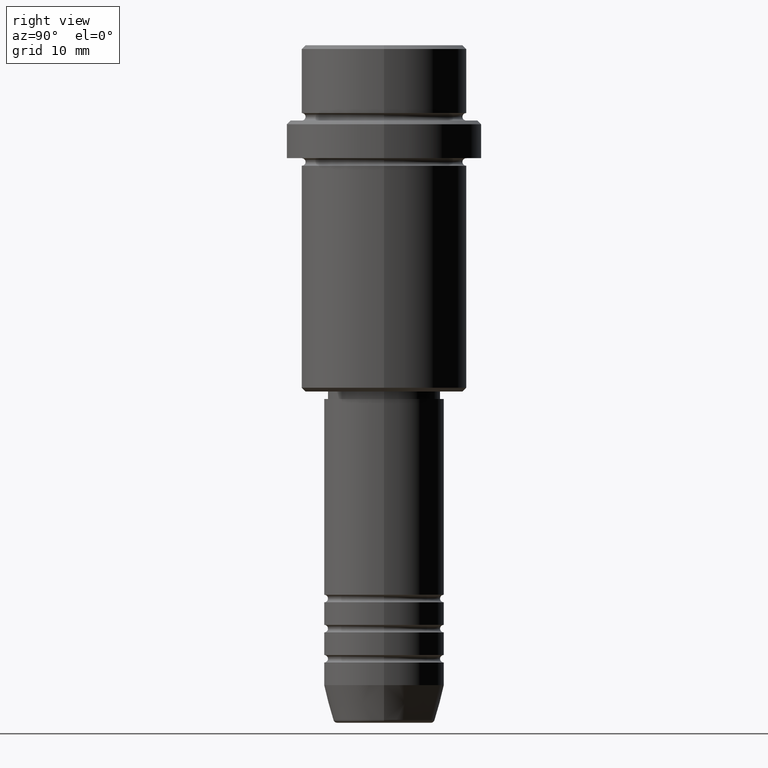
[diagram: clean part render]
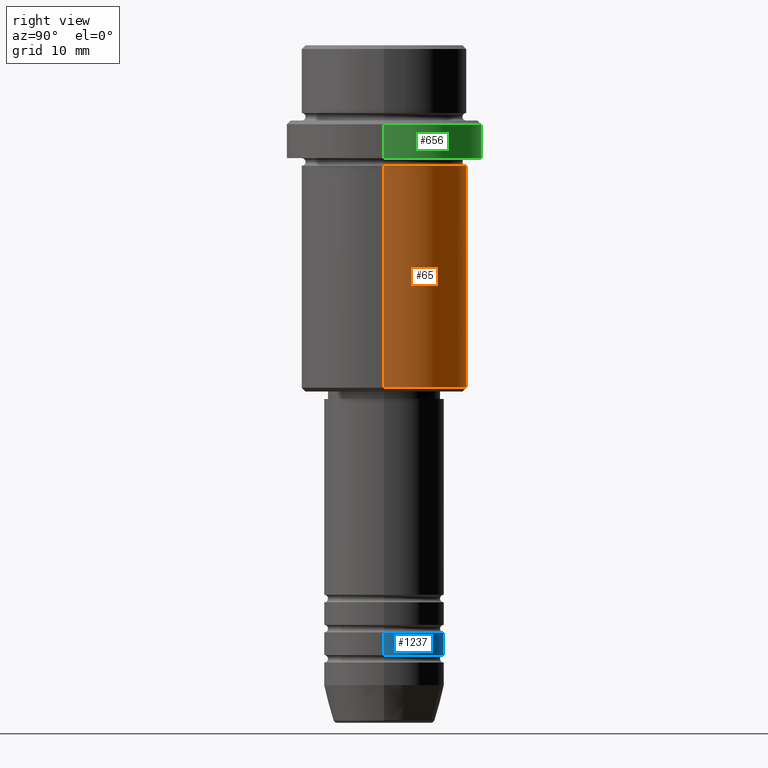
[diagram: same view with three faces highlighted in distinct colors, each labeled with its STEP entity id]
A machine part, right view with three faces highlighted in distinct colors.
Their STEP definitions:

[orange] entity #65 — the highlighted cylindrical surface (partial cylindrical patch) has radius 11 mm, axis along (-0, -0, 1).
#25 = EDGE_LOOP ( 'NONE', ( #969, #149, #1257, #78 ) ) ;
#55 = CARTESIAN_POINT ( 'NONE',  ( 0.000000000000000000, 0.000000000000000000, -16.00000000000000355 ) ) ;
#61 = DIRECTION ( 'NONE',  ( 1.000000000000000000, 0.000000000000000000, 0.000000000000000000 ) ) ;
#65 = ADVANCED_FACE ( 'NONE', ( #218 ), #127, .T. ) ;
#71 = CARTESIAN_POINT ( 'NONE',  ( -10.99999999999998757, 1.347111479062086827E-15, 0.000000000000000000 ) ) ;
#78 = ORIENTED_EDGE ( 'NONE', *, *, #148, .F. ) ;
#97 = CIRCLE ( 'NONE', #1162, 10.99999999999997158 ) ;
#100 = VECTOR ( 'NONE', #1375, 1000.000000000000000 ) ;
#114 = CARTESIAN_POINT ( 'NONE',  ( 10.99999999999998757, 0.000000000000000000, 0.000000000000000000 ) ) ;
#127 = CYLINDRICAL_SURFACE ( 'NONE', #1223, 10.99999999999998757 ) ;
#148 = EDGE_CURVE ( 'NONE', #309, #1197, #1110, .T. ) ;
#149 = ORIENTED_EDGE ( 'NONE', *, *, #910, .T. ) ;
#193 = EDGE_CURVE ( 'NONE', #1197, #403, #97, .T. ) ;
#218 = FACE_OUTER_BOUND ( 'NONE', #25, .T. ) ;
#224 = DIRECTION ( 'NONE',  ( -0.000000000000000000, -0.000000000000000000, 1.000000000000000000 ) ) ;
#309 = VERTEX_POINT ( 'NONE', #800 ) ;
#383 = DIRECTION ( 'NONE',  ( -1.000000000000000000, 0.000000000000000000, 0.000000000000000000 ) ) ;
#403 = VERTEX_POINT ( 'NONE', #653 ) ;
#428 = DIRECTION ( 'NONE',  ( 1.000000000000000000, 0.000000000000000000, 0.000000000000000000 ) ) ;
#442 = CARTESIAN_POINT ( 'NONE',  ( 10.99999999999997158, 0.000000000000000000, -16.00000000000000355 ) ) ;
#653 = CARTESIAN_POINT ( 'NONE',  ( -10.99999999999997158, 1.347111479062085841E-15, -16.00000000000000355 ) ) ;
#676 = CARTESIAN_POINT ( 'NONE',  ( 0.000000000000000000, 0.000000000000000000, 0.000000000000000000 ) ) ;
#705 = CARTESIAN_POINT ( 'NONE',  ( 0.000000000000000000, 0.000000000000000000, -45.50000000000000000 ) ) ;
#722 = DIRECTION ( 'NONE',  ( -0.000000000000000000, -0.000000000000000000, 1.000000000000000000 ) ) ;
#799 = VERTEX_POINT ( 'NONE', #1326 ) ;
#800 = CARTESIAN_POINT ( 'NONE',  ( 10.99999999999998757, 0.000000000000000000, -45.50000000000000000 ) ) ;
#910 = EDGE_CURVE ( 'NONE', #799, #403, #1131, .T. ) ;
#919 = VECTOR ( 'NONE', #224, 1000.000000000000000 ) ;
#969 = ORIENTED_EDGE ( 'NONE', *, *, #1236, .T. ) ;
#1110 = LINE ( 'NONE', #114, #919 ) ;
#1131 = LINE ( 'NONE', #71, #100 ) ;
#1162 = AXIS2_PLACEMENT_3D ( 'NONE', #55, #1359, #61 ) ;
#1194 = AXIS2_PLACEMENT_3D ( 'NONE', #705, #722, #383 ) ;
#1197 = VERTEX_POINT ( 'NONE', #442 ) ;
#1223 = AXIS2_PLACEMENT_3D ( 'NONE', #676, #1327, #428 ) ;
#1236 = EDGE_CURVE ( 'NONE', #309, #799, #1319, .T. ) ;
#1257 = ORIENTED_EDGE ( 'NONE', *, *, #193, .F. ) ;
#1319 = CIRCLE ( 'NONE', #1194, 10.99999999999998757 ) ;
#1326 = CARTESIAN_POINT ( 'NONE',  ( -10.99999999999998757, 1.347111479062086827E-15, -45.50000000000000000 ) ) ;
#1327 = DIRECTION ( 'NONE',  ( -0.000000000000000000, -0.000000000000000000, 1.000000000000000000 ) ) ;
#1359 = DIRECTION ( 'NONE',  ( -0.000000000000000000, -0.000000000000000000, 1.000000000000000000 ) ) ;
#1375 = DIRECTION ( 'NONE',  ( -0.000000000000000000, -0.000000000000000000, 1.000000000000000000 ) ) ;

[blue] entity #1237 — the highlighted cylindrical surface (partial cylindrical patch) has radius 8 mm, axis along (-0, -0, 1).
#18 = CARTESIAN_POINT ( 'NONE',  ( 8.000000000000000000, 0.000000000000000000, -77.99999999999990052 ) ) ;
#19 = EDGE_CURVE ( 'NONE', #382, #537, #849, .T. ) ;
#83 = VECTOR ( 'NONE', #529, 1000.000000000000000 ) ;
#94 = LINE ( 'NONE', #1304, #83 ) ;
#104 = CARTESIAN_POINT ( 'NONE',  ( 0.000000000000000000, 0.000000000000000000, -80.99999999999990052 ) ) ;
#147 = CARTESIAN_POINT ( 'NONE',  ( -8.000000000000000000, 9.797174393178825657E-16, -80.99999999999990052 ) ) ;
#150 = DIRECTION ( 'NONE',  ( 1.000000000000000000, 0.000000000000000000, 0.000000000000000000 ) ) ;
#157 = VERTEX_POINT ( 'NONE', #18 ) ;
#191 = DIRECTION ( 'NONE',  ( -0.000000000000000000, -0.000000000000000000, 1.000000000000000000 ) ) ;
#256 = EDGE_CURVE ( 'NONE', #1063, #382, #1404, .T. ) ;
#264 = EDGE_CURVE ( 'NONE', #157, #537, #320, .T. ) ;
#283 = CARTESIAN_POINT ( 'NONE',  ( -8.000000000000000000, 9.797174393178825657E-16, -77.99999999999990052 ) ) ;
#311 = ORIENTED_EDGE ( 'NONE', *, *, #256, .T. ) ;
#320 = CIRCLE ( 'NONE', #1138, 8.000000000000000000 ) ;
#382 = VERTEX_POINT ( 'NONE', #147 ) ;
#405 = CARTESIAN_POINT ( 'NONE',  ( 8.000000000000000000, 0.000000000000000000, -80.99999999999990052 ) ) ;
#466 = CYLINDRICAL_SURFACE ( 'NONE', #666, 8.000000000000000000 ) ;
#512 = ORIENTED_EDGE ( 'NONE', *, *, #19, .T. ) ;
#529 = DIRECTION ( 'NONE',  ( -0.000000000000000000, -0.000000000000000000, 1.000000000000000000 ) ) ;
#537 = VERTEX_POINT ( 'NONE', #283 ) ;
#632 = ORIENTED_EDGE ( 'NONE', *, *, #264, .F. ) ;
#666 = AXIS2_PLACEMENT_3D ( 'NONE', #819, #827, #150 ) ;
#748 = DIRECTION ( 'NONE',  ( -0.000000000000000000, -0.000000000000000000, 1.000000000000000000 ) ) ;
#819 = CARTESIAN_POINT ( 'NONE',  ( 0.000000000000000000, 0.000000000000000000, 0.000000000000000000 ) ) ;
#827 = DIRECTION ( 'NONE',  ( -0.000000000000000000, -0.000000000000000000, 1.000000000000000000 ) ) ;
#849 = LINE ( 'NONE', #1289, #1070 ) ;
#945 = AXIS2_PLACEMENT_3D ( 'NONE', #104, #748, #1206 ) ;
#1057 = EDGE_CURVE ( 'NONE', #1063, #157, #94, .T. ) ;
#1063 = VERTEX_POINT ( 'NONE', #405 ) ;
#1070 = VECTOR ( 'NONE', #191, 1000.000000000000000 ) ;
#1082 = DIRECTION ( 'NONE',  ( -0.000000000000000000, -0.000000000000000000, 1.000000000000000000 ) ) ;
#1093 = EDGE_LOOP ( 'NONE', ( #311, #512, #632, #1268 ) ) ;
#1099 = DIRECTION ( 'NONE',  ( 1.000000000000000000, 0.000000000000000000, 0.000000000000000000 ) ) ;
#1138 = AXIS2_PLACEMENT_3D ( 'NONE', #1278, #1082, #1099 ) ;
#1172 = FACE_OUTER_BOUND ( 'NONE', #1093, .T. ) ;
#1206 = DIRECTION ( 'NONE',  ( 1.000000000000000000, 0.000000000000000000, 0.000000000000000000 ) ) ;
#1237 = ADVANCED_FACE ( 'NONE', ( #1172 ), #466, .T. ) ;
#1268 = ORIENTED_EDGE ( 'NONE', *, *, #1057, .F. ) ;
#1278 = CARTESIAN_POINT ( 'NONE',  ( 0.000000000000000000, 0.000000000000000000, -77.99999999999990052 ) ) ;
#1289 = CARTESIAN_POINT ( 'NONE',  ( -8.000000000000000000, 9.797174393178825657E-16, 0.000000000000000000 ) ) ;
#1304 = CARTESIAN_POINT ( 'NONE',  ( 8.000000000000000000, 0.000000000000000000, 0.000000000000000000 ) ) ;
#1404 = CIRCLE ( 'NONE', #945, 8.000000000000000000 ) ;

[green] entity #656 — the highlighted cylindrical surface (partial cylindrical patch) has radius 13 mm, axis along (-0, -0, 1).
#26 = EDGE_LOOP ( 'NONE', ( #518, #1129, #414, #106 ) ) ;
#69 = CARTESIAN_POINT ( 'NONE',  ( -13.00000000000000000, 1.592040838891559095E-15, 0.000000000000000000 ) ) ;
#106 = ORIENTED_EDGE ( 'NONE', *, *, #807, .F. ) ;
#121 = AXIS2_PLACEMENT_3D ( 'NONE', #1324, #1316, #330 ) ;
#138 = CIRCLE ( 'NONE', #547, 13.00000000000000000 ) ;
#152 = DIRECTION ( 'NONE',  ( 0.000000000000000000, 0.000000000000000000, -1.000000000000000000 ) ) ;
#207 = VECTOR ( 'NONE', #1116, 1000.000000000000000 ) ;
#223 = LINE ( 'NONE', #1331, #207 ) ;
#261 = CARTESIAN_POINT ( 'NONE',  ( 0.000000000000000000, 0.000000000000000000, 0.000000000000000000 ) ) ;
#272 = DIRECTION ( 'NONE',  ( -0.000000000000000000, -0.000000000000000000, 1.000000000000000000 ) ) ;
#292 = VERTEX_POINT ( 'NONE', #743 ) ;
#330 = DIRECTION ( 'NONE',  ( 1.000000000000000000, 0.000000000000000000, 0.000000000000000000 ) ) ;
#413 = CIRCLE ( 'NONE', #121, 13.00000000000000000 ) ;
#414 = ORIENTED_EDGE ( 'NONE', *, *, #671, .T. ) ;
#518 = ORIENTED_EDGE ( 'NONE', *, *, #723, .T. ) ;
#547 = AXIS2_PLACEMENT_3D ( 'NONE', #1276, #152, #1356 ) ;
#637 = AXIS2_PLACEMENT_3D ( 'NONE', #261, #1255, #1147 ) ;
#650 = VERTEX_POINT ( 'NONE', #1262 ) ;
#656 = ADVANCED_FACE ( 'NONE', ( #1041 ), #1380, .T. ) ;
#671 = EDGE_CURVE ( 'NONE', #650, #1353, #138, .T. ) ;
#723 = EDGE_CURVE ( 'NONE', #292, #915, #413, .T. ) ;
#743 = CARTESIAN_POINT ( 'NONE',  ( 13.00000000000000000, 0.000000000000000000, -15.00000000000000178 ) ) ;
#785 = CARTESIAN_POINT ( 'NONE',  ( 13.00000000000000000, 0.000000000000000000, -10.50000000000000711 ) ) ;
#807 = EDGE_CURVE ( 'NONE', #292, #1353, #223, .T. ) ;
#915 = VERTEX_POINT ( 'NONE', #1263 ) ;
#1004 = VECTOR ( 'NONE', #272, 1000.000000000000000 ) ;
#1041 = FACE_OUTER_BOUND ( 'NONE', #26, .T. ) ;
#1116 = DIRECTION ( 'NONE',  ( -0.000000000000000000, -0.000000000000000000, 1.000000000000000000 ) ) ;
#1129 = ORIENTED_EDGE ( 'NONE', *, *, #1234, .T. ) ;
#1147 = DIRECTION ( 'NONE',  ( 1.000000000000000000, 0.000000000000000000, 0.000000000000000000 ) ) ;
#1234 = EDGE_CURVE ( 'NONE', #915, #650, #1354, .T. ) ;
#1255 = DIRECTION ( 'NONE',  ( -0.000000000000000000, -0.000000000000000000, 1.000000000000000000 ) ) ;
#1262 = CARTESIAN_POINT ( 'NONE',  ( -13.00000000000000000, 1.592040838891559095E-15, -10.50000000000000711 ) ) ;
#1263 = CARTESIAN_POINT ( 'NONE',  ( -13.00000000000000000, 1.592040838891559095E-15, -15.00000000000000178 ) ) ;
#1276 = CARTESIAN_POINT ( 'NONE',  ( 0.000000000000000000, 0.000000000000000000, -10.50000000000000711 ) ) ;
#1316 = DIRECTION ( 'NONE',  ( -0.000000000000000000, -0.000000000000000000, 1.000000000000000000 ) ) ;
#1324 = CARTESIAN_POINT ( 'NONE',  ( 0.000000000000000000, 0.000000000000000000, -15.00000000000000178 ) ) ;
#1331 = CARTESIAN_POINT ( 'NONE',  ( 13.00000000000000000, 0.000000000000000000, 0.000000000000000000 ) ) ;
#1353 = VERTEX_POINT ( 'NONE', #785 ) ;
#1354 = LINE ( 'NONE', #69, #1004 ) ;
#1356 = DIRECTION ( 'NONE',  ( 1.000000000000000000, 0.000000000000000000, 0.000000000000000000 ) ) ;
#1380 = CYLINDRICAL_SURFACE ( 'NONE', #637, 13.00000000000000000 ) ;